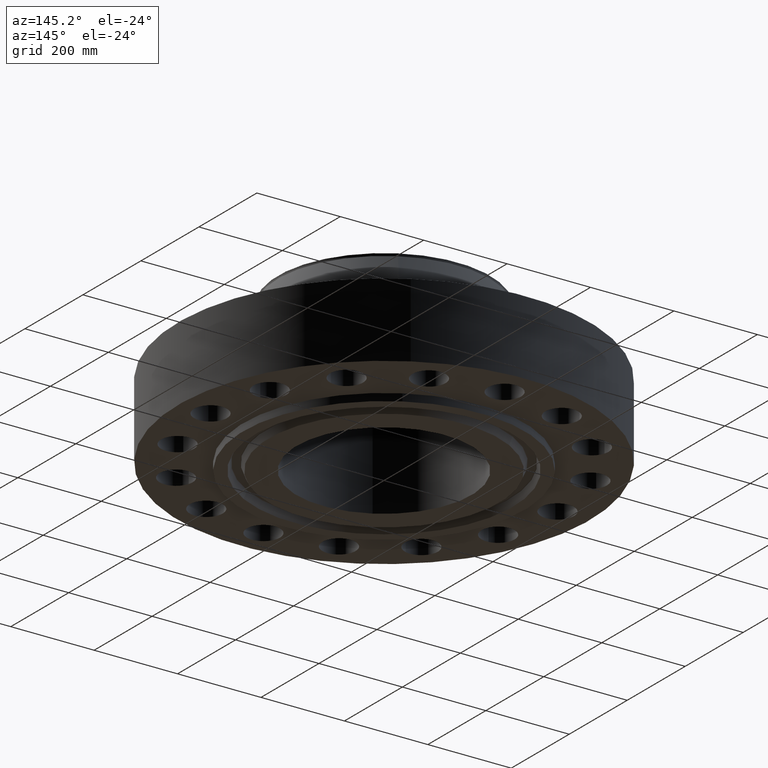
[diagram: clean part render]
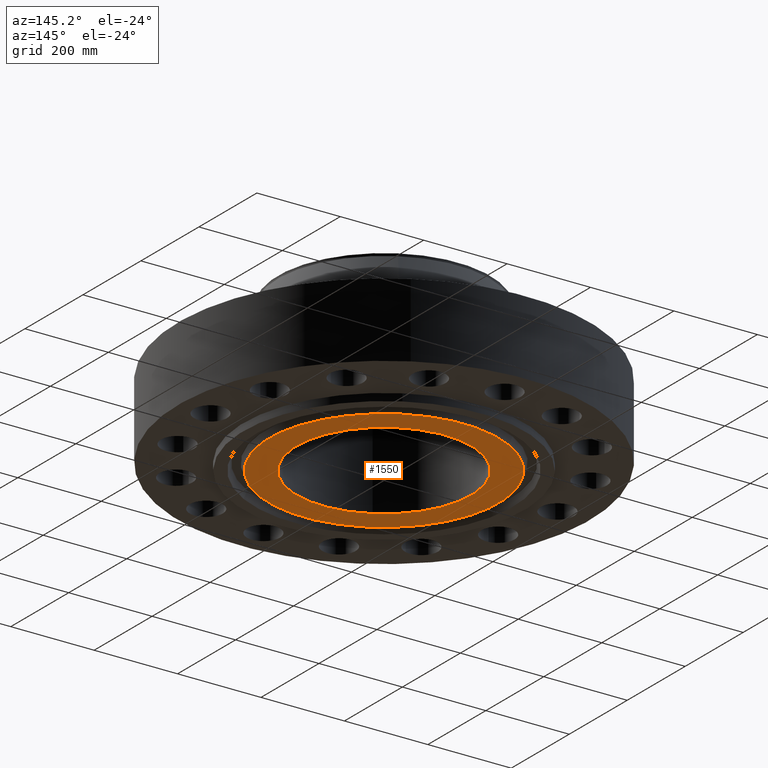
[diagram: same view with one face highlighted and labeled with its STEP entity id]
A machine part, auxiliary view. The second image highlights one B-rep face of the part: STEP entity #1550.
In plain terms, the highlighted planar face has unit normal (0, 0, -1).
Its self-contained STEP definition (entity closure, byte-faithful):
#427=AXIS2_PLACEMENT_3D('Circle Axis2P3D',#425,#426,$) ;
#446=AXIS2_PLACEMENT_3D('Circle Axis2P3D',#444,#445,$) ;
#1503=AXIS2_PLACEMENT_3D('Plane Axis2P3D',#1500,#1501,#1502) ;
#1530=AXIS2_PLACEMENT_3D('Circle Axis2P3D',#1528,#1529,$) ;
#1539=AXIS2_PLACEMENT_3D('Circle Axis2P3D',#1537,#1538,$) ;
#422=CARTESIAN_POINT('Vertex',(-3.9552606935,-7.24005613562,-0.688000000003)) ;
#425=CARTESIAN_POINT('Axis2P3D Location',(0.,0.,-0.688000000003)) ;
#429=CARTESIAN_POINT('Vertex',(3.9552606935,7.24005613562,-0.688000000003)) ;
#444=CARTESIAN_POINT('Axis2P3D Location',(0.,0.,-0.688000000003)) ;
#1500=CARTESIAN_POINT('Axis2P3D Location',(0.,8.25000000003,-0.688000000003)) ;
#1528=CARTESIAN_POINT('Axis2P3D Location',(0.,-1.1189649382E-015,-0.688000000003)) ;
#1532=CARTESIAN_POINT('Vertex',(-5.19865082788,9.5160665099,-0.688000000003)) ;
#1534=CARTESIAN_POINT('Vertex',(5.19865082788,-9.5160665099,-0.688000000003)) ;
#1537=CARTESIAN_POINT('Axis2P3D Location',(1.1189649382E-015,0.,-0.688000000003)) ;
#426=DIRECTION('Axis2P3D Direction',(0.,0.,-0.0393700787402)) ;
#445=DIRECTION('Axis2P3D Direction',(0.,0.,-0.0393700787402)) ;
#1501=DIRECTION('Axis2P3D Direction',(0.,0.,-0.0393700787402)) ;
#1502=DIRECTION('Axis2P3D XDirection',(0.0393700787402,0.,0.)) ;
#1529=DIRECTION('Axis2P3D Direction',(0.,0.,-0.0393700787402)) ;
#1538=DIRECTION('Axis2P3D Direction',(0.,0.,-0.0393700787402)) ;
#1543=ORIENTED_EDGE('',*,*,#1536,.T.) ;
#1544=ORIENTED_EDGE('',*,*,#1541,.T.) ;
#1547=ORIENTED_EDGE('',*,*,#448,.F.) ;
#1548=ORIENTED_EDGE('',*,*,#431,.F.) ;
#1549=FACE_BOUND('',#1546,.T.) ;
#1550=ADVANCED_FACE('PartBody',(#1545,#1549),#1504,.T.) ;
#428=CIRCLE('generated circle',#427,8.25000000003) ;
#447=CIRCLE('generated circle',#446,8.25000000003) ;
#1531=CIRCLE('generated circle',#1530,10.8435) ;
#1540=CIRCLE('generated circle',#1539,10.8435) ;
#431=EDGE_CURVE('',#423,#430,#428,.T.) ;
#448=EDGE_CURVE('',#430,#423,#447,.T.) ;
#1536=EDGE_CURVE('',#1533,#1535,#1531,.T.) ;
#1541=EDGE_CURVE('',#1535,#1533,#1540,.T.) ;
#1542=EDGE_LOOP('',(#1543,#1544)) ;
#1546=EDGE_LOOP('',(#1547,#1548)) ;
#1545=FACE_OUTER_BOUND('',#1542,.T.) ;
#1504=PLANE('',#1503) ;
#423=VERTEX_POINT('',#422) ;
#430=VERTEX_POINT('',#429) ;
#1533=VERTEX_POINT('',#1532) ;
#1535=VERTEX_POINT('',#1534) ;